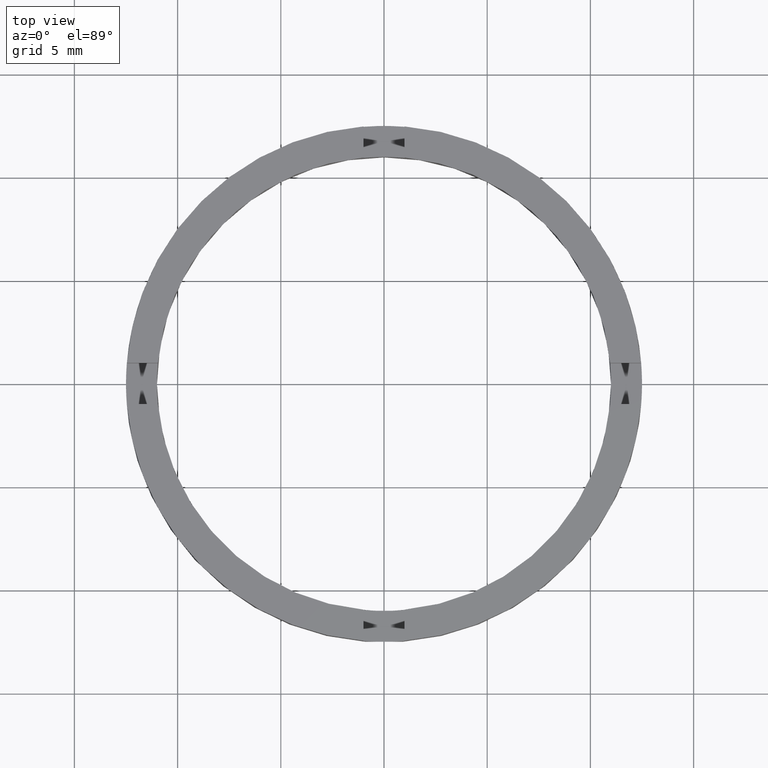
[diagram: clean part render]
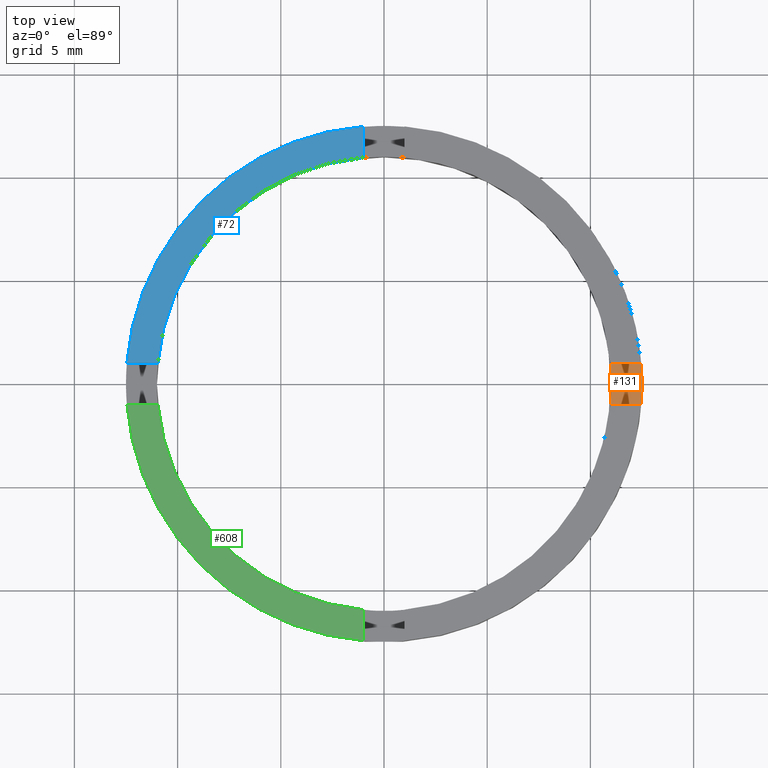
[diagram: same view with three faces highlighted in distinct colors, each labeled with its STEP entity id]
A machine part, top view with three faces highlighted in distinct colors.
Their STEP definitions:

[orange] entity #131 — the highlighted planar face has unit normal (0, 0, 1).
#21 = EDGE_CURVE ( 'NONE', #759, #750, #149, .T. ) ;
#23 = AXIS2_PLACEMENT_3D ( 'NONE', #730, #50, #550 ) ;
#24 = DIRECTION ( 'NONE',  ( 1.000000000000000000, 0.000000000000000000, 0.000000000000000000 ) ) ;
#30 = DIRECTION ( 'NONE',  ( 1.000000000000000000, 0.000000000000000000, 0.000000000000000000 ) ) ;
#31 = VECTOR ( 'NONE', #358, 1000.000000000000000 ) ;
#32 = LINE ( 'NONE', #299, #31 ) ;
#40 = CARTESIAN_POINT ( 'NONE',  ( 12.45993579437712739, 0.9999999999998402389, 1.500000000000000000 ) ) ;
#50 = DIRECTION ( 'NONE',  ( 0.000000000000000000, 0.000000000000000000, 1.000000000000000000 ) ) ;
#108 = ORIENTED_EDGE ( 'NONE', *, *, #21, .F. ) ;
#111 = VERTEX_POINT ( 'NONE', #40 ) ;
#113 = FACE_OUTER_BOUND ( 'NONE', #123, .T. ) ;
#123 = EDGE_LOOP ( 'NONE', ( #681, #432, #426, #108, #738, #232 ) ) ;
#126 = CARTESIAN_POINT ( 'NONE',  ( 0.000000000000000000, 0.000000000000000000, 1.500000000000000000 ) ) ;
#131 = ADVANCED_FACE ( 'NONE', ( #113 ), #611, .T. ) ;
#149 = CIRCLE ( 'NONE', #247, 11.00000000000000000 ) ;
#201 = CIRCLE ( 'NONE', #350, 11.00000000000000000 ) ;
#224 = CARTESIAN_POINT ( 'NONE',  ( 2.499999999999998668, -1.000000000000160316, 1.500000000000000000 ) ) ;
#232 = ORIENTED_EDGE ( 'NONE', *, *, #688, .T. ) ;
#235 = CARTESIAN_POINT ( 'NONE',  ( 10.95445115010333659, 0.9999999999998402389, 1.500000000000000000 ) ) ;
#247 = AXIS2_PLACEMENT_3D ( 'NONE', #126, #322, #24 ) ;
#254 = VERTEX_POINT ( 'NONE', #355 ) ;
#290 = DIRECTION ( 'NONE',  ( 0.000000000000000000, 0.000000000000000000, 1.000000000000000000 ) ) ;
#292 = DIRECTION ( 'NONE',  ( 1.000000000000000000, 0.000000000000000000, 0.000000000000000000 ) ) ;
#294 = LINE ( 'NONE', #224, #558 ) ;
#299 = CARTESIAN_POINT ( 'NONE',  ( 2.499999999999998668, 0.9999999999998397948, 1.500000000000000000 ) ) ;
#316 = AXIS2_PLACEMENT_3D ( 'NONE', #711, #780, #411 ) ;
#322 = DIRECTION ( 'NONE',  ( 0.000000000000000000, 0.000000000000000000, 1.000000000000000000 ) ) ;
#330 = DIRECTION ( 'NONE',  ( 1.000000000000000000, 4.336808689942018352E-17, 0.000000000000000000 ) ) ;
#334 = CARTESIAN_POINT ( 'NONE',  ( 12.50000000000000000, 1.530808498934191521E-15, 1.500000000000000000 ) ) ;
#348 = EDGE_CURVE ( 'NONE', #778, #759, #201, .T. ) ;
#350 = AXIS2_PLACEMENT_3D ( 'NONE', #613, #757, #292 ) ;
#355 = CARTESIAN_POINT ( 'NONE',  ( 12.45993579437710075, -1.000000000000159872, 1.500000000000000000 ) ) ;
#358 = DIRECTION ( 'NONE',  ( -1.000000000000000000, -4.336808689942018352E-17, -0.000000000000000000 ) ) ;
#411 = DIRECTION ( 'NONE',  ( 1.000000000000000000, 0.000000000000000000, -0.000000000000000000 ) ) ;
#426 = ORIENTED_EDGE ( 'NONE', *, *, #633, .T. ) ;
#432 = ORIENTED_EDGE ( 'NONE', *, *, #499, .T. ) ;
#499 = EDGE_CURVE ( 'NONE', #646, #111, #614, .T. ) ;
#550 = DIRECTION ( 'NONE',  ( 1.000000000000000000, 0.000000000000000000, 0.000000000000000000 ) ) ;
#557 = AXIS2_PLACEMENT_3D ( 'NONE', #769, #290, #30 ) ;
#558 = VECTOR ( 'NONE', #330, 1000.000000000000000 ) ;
#562 = CIRCLE ( 'NONE', #557, 12.50000000000000000 ) ;
#611 = PLANE ( 'NONE',  #316 ) ;
#613 = CARTESIAN_POINT ( 'NONE',  ( 0.000000000000000000, 0.000000000000000000, 1.500000000000000000 ) ) ;
#614 = CIRCLE ( 'NONE', #23, 12.50000000000000000 ) ;
#633 = EDGE_CURVE ( 'NONE', #111, #750, #32, .T. ) ;
#646 = VERTEX_POINT ( 'NONE', #334 ) ;
#649 = CARTESIAN_POINT ( 'NONE',  ( 11.00000000000000000, 1.347111479062088405E-15, 1.500000000000000000 ) ) ;
#681 = ORIENTED_EDGE ( 'NONE', *, *, #685, .T. ) ;
#685 = EDGE_CURVE ( 'NONE', #254, #646, #562, .T. ) ;
#688 = EDGE_CURVE ( 'NONE', #778, #254, #294, .T. ) ;
#711 = CARTESIAN_POINT ( 'NONE',  ( 0.000000000000000000, 0.000000000000000000, 1.500000000000000000 ) ) ;
#715 = CARTESIAN_POINT ( 'NONE',  ( 10.95445115010330639, -1.000000000000159872, 1.500000000000000000 ) ) ;
#730 = CARTESIAN_POINT ( 'NONE',  ( 0.000000000000000000, 0.000000000000000000, 1.500000000000000000 ) ) ;
#738 = ORIENTED_EDGE ( 'NONE', *, *, #348, .F. ) ;
#750 = VERTEX_POINT ( 'NONE', #235 ) ;
#757 = DIRECTION ( 'NONE',  ( 0.000000000000000000, 0.000000000000000000, 1.000000000000000000 ) ) ;
#759 = VERTEX_POINT ( 'NONE', #649 ) ;
#769 = CARTESIAN_POINT ( 'NONE',  ( 0.000000000000000000, 0.000000000000000000, 1.500000000000000000 ) ) ;
#778 = VERTEX_POINT ( 'NONE', #715 ) ;
#780 = DIRECTION ( 'NONE',  ( 0.000000000000000000, 0.000000000000000000, 1.000000000000000000 ) ) ;

[blue] entity #72 — the highlighted planar face has unit normal (0, 0, 1).
#34 = DIRECTION ( 'NONE',  ( 0.000000000000000000, 0.000000000000000000, 1.000000000000000000 ) ) ;
#72 = ADVANCED_FACE ( 'NONE', ( #146 ), #156, .T. ) ;
#73 = DIRECTION ( 'NONE',  ( -0.000000000000000000, -1.000000000000000000, -0.000000000000000000 ) ) ;
#83 = EDGE_CURVE ( 'NONE', #480, #98, #158, .T. ) ;
#98 = VERTEX_POINT ( 'NONE', #587 ) ;
#103 = EDGE_CURVE ( 'NONE', #98, #219, #648, .T. ) ;
#146 = FACE_OUTER_BOUND ( 'NONE', #241, .T. ) ;
#156 = PLANE ( 'NONE',  #476 ) ;
#158 = LINE ( 'NONE', #238, #689 ) ;
#188 = CARTESIAN_POINT ( 'NONE',  ( -12.45993579437711496, 0.9999999999999779066, 2.500000000000000000 ) ) ;
#198 = VECTOR ( 'NONE', #327, 1000.000000000000000 ) ;
#219 = VERTEX_POINT ( 'NONE', #610 ) ;
#230 = CARTESIAN_POINT ( 'NONE',  ( 0.000000000000000000, 0.000000000000000000, 2.500000000000000000 ) ) ;
#238 = CARTESIAN_POINT ( 'NONE',  ( -1.000000000000024425, 2.500000000000002220, 2.500000000000000000 ) ) ;
#241 = EDGE_LOOP ( 'NONE', ( #519, #487, #676, #484 ) ) ;
#284 = CARTESIAN_POINT ( 'NONE',  ( -2.500000000000186073, 0.9999999999999796829, 2.500000000000000000 ) ) ;
#296 = DIRECTION ( 'NONE',  ( 1.000000000000000000, 0.000000000000000000, 0.000000000000000000 ) ) ;
#327 = DIRECTION ( 'NONE',  ( -1.000000000000000000, -1.734723475976807341E-16, 0.000000000000000000 ) ) ;
#392 = EDGE_CURVE ( 'NONE', #219, #503, #464, .T. ) ;
#404 = AXIS2_PLACEMENT_3D ( 'NONE', #584, #699, #296 ) ;
#428 = CIRCLE ( 'NONE', #404, 12.50000000000000000 ) ;
#464 = LINE ( 'NONE', #284, #198 ) ;
#476 = AXIS2_PLACEMENT_3D ( 'NONE', #547, #34, #573 ) ;
#480 = VERTEX_POINT ( 'NONE', #548 ) ;
#482 = DIRECTION ( 'NONE',  ( 0.000000000000000000, 0.000000000000000000, 1.000000000000000000 ) ) ;
#484 = ORIENTED_EDGE ( 'NONE', *, *, #103, .F. ) ;
#487 = ORIENTED_EDGE ( 'NONE', *, *, #606, .T. ) ;
#503 = VERTEX_POINT ( 'NONE', #188 ) ;
#519 = ORIENTED_EDGE ( 'NONE', *, *, #83, .F. ) ;
#547 = CARTESIAN_POINT ( 'NONE',  ( 0.000000000000000000, 0.000000000000000000, 2.500000000000000000 ) ) ;
#548 = CARTESIAN_POINT ( 'NONE',  ( -1.000000000000024425, 12.45993579437711141, 2.500000000000000000 ) ) ;
#573 = DIRECTION ( 'NONE',  ( 1.000000000000000000, 0.000000000000000000, -0.000000000000000000 ) ) ;
#584 = CARTESIAN_POINT ( 'NONE',  ( 0.000000000000000000, 0.000000000000000000, 2.500000000000000000 ) ) ;
#587 = CARTESIAN_POINT ( 'NONE',  ( -1.000000000000024425, 10.95445115010331882, 2.500000000000000000 ) ) ;
#606 = EDGE_CURVE ( 'NONE', #480, #503, #428, .T. ) ;
#609 = AXIS2_PLACEMENT_3D ( 'NONE', #230, #482, #615 ) ;
#610 = CARTESIAN_POINT ( 'NONE',  ( -10.95445115010332415, 0.9999999999999781286, 2.500000000000000000 ) ) ;
#615 = DIRECTION ( 'NONE',  ( 1.000000000000000000, 0.000000000000000000, 0.000000000000000000 ) ) ;
#648 = CIRCLE ( 'NONE', #609, 11.00000000000000000 ) ;
#676 = ORIENTED_EDGE ( 'NONE', *, *, #392, .F. ) ;
#689 = VECTOR ( 'NONE', #73, 1000.000000000000000 ) ;
#699 = DIRECTION ( 'NONE',  ( 0.000000000000000000, 0.000000000000000000, 1.000000000000000000 ) ) ;

[green] entity #608 — the highlighted planar face has unit normal (0, 0, 1).
#4 = CARTESIAN_POINT ( 'NONE',  ( 0.000000000000000000, 0.000000000000000000, 2.500000000000000000 ) ) ;
#16 = CARTESIAN_POINT ( 'NONE',  ( -2.500000000000186073, -1.000000000000020428, 2.500000000000000000 ) ) ;
#19 = EDGE_CURVE ( 'NONE', #520, #740, #130, .T. ) ;
#42 = AXIS2_PLACEMENT_3D ( 'NONE', #4, #592, #424 ) ;
#53 = DIRECTION ( 'NONE',  ( 0.000000000000000000, 0.000000000000000000, 1.000000000000000000 ) ) ;
#62 = AXIS2_PLACEMENT_3D ( 'NONE', #179, #579, #402 ) ;
#63 = DIRECTION ( 'NONE',  ( 1.000000000000000000, 0.000000000000000000, 0.000000000000000000 ) ) ;
#66 = CARTESIAN_POINT ( 'NONE',  ( -10.95445115010331882, -1.000000000000021982, 2.500000000000000000 ) ) ;
#130 = CIRCLE ( 'NONE', #560, 12.50000000000000000 ) ;
#167 = VECTOR ( 'NONE', #765, 1000.000000000000000 ) ;
#168 = CARTESIAN_POINT ( 'NONE',  ( -1.000000000000163647, -10.95445115010330639, 2.500000000000000000 ) ) ;
#175 = LINE ( 'NONE', #695, #167 ) ;
#179 = CARTESIAN_POINT ( 'NONE',  ( 0.000000000000000000, 0.000000000000000000, 2.500000000000000000 ) ) ;
#191 = VECTOR ( 'NONE', #446, 1000.000000000000000 ) ;
#245 = PLANE ( 'NONE',  #62 ) ;
#258 = EDGE_CURVE ( 'NONE', #746, #740, #175, .T. ) ;
#261 = CARTESIAN_POINT ( 'NONE',  ( -1.000000000000163647, -12.45993579437710075, 2.500000000000000000 ) ) ;
#311 = EDGE_CURVE ( 'NONE', #520, #673, #720, .T. ) ;
#385 = EDGE_LOOP ( 'NONE', ( #495, #763, #760, #531 ) ) ;
#402 = DIRECTION ( 'NONE',  ( 1.000000000000000000, 0.000000000000000000, -0.000000000000000000 ) ) ;
#409 = CIRCLE ( 'NONE', #42, 11.00000000000000000 ) ;
#424 = DIRECTION ( 'NONE',  ( 1.000000000000000000, 0.000000000000000000, 0.000000000000000000 ) ) ;
#446 = DIRECTION ( 'NONE',  ( 1.000000000000000000, 1.734723475976807341E-16, -0.000000000000000000 ) ) ;
#465 = EDGE_CURVE ( 'NONE', #673, #746, #409, .T. ) ;
#495 = ORIENTED_EDGE ( 'NONE', *, *, #258, .F. ) ;
#520 = VERTEX_POINT ( 'NONE', #625 ) ;
#531 = ORIENTED_EDGE ( 'NONE', *, *, #19, .T. ) ;
#560 = AXIS2_PLACEMENT_3D ( 'NONE', #659, #53, #63 ) ;
#579 = DIRECTION ( 'NONE',  ( 0.000000000000000000, 0.000000000000000000, 1.000000000000000000 ) ) ;
#592 = DIRECTION ( 'NONE',  ( 0.000000000000000000, 0.000000000000000000, 1.000000000000000000 ) ) ;
#608 = ADVANCED_FACE ( 'NONE', ( #680 ), #245, .T. ) ;
#625 = CARTESIAN_POINT ( 'NONE',  ( -12.45993579437711141, -1.000000000000022204, 2.500000000000000000 ) ) ;
#659 = CARTESIAN_POINT ( 'NONE',  ( 0.000000000000000000, 0.000000000000000000, 2.500000000000000000 ) ) ;
#673 = VERTEX_POINT ( 'NONE', #66 ) ;
#680 = FACE_OUTER_BOUND ( 'NONE', #385, .T. ) ;
#695 = CARTESIAN_POINT ( 'NONE',  ( -1.000000000000164757, -2.500000000000182521, 2.500000000000000000 ) ) ;
#720 = LINE ( 'NONE', #16, #191 ) ;
#740 = VERTEX_POINT ( 'NONE', #261 ) ;
#746 = VERTEX_POINT ( 'NONE', #168 ) ;
#760 = ORIENTED_EDGE ( 'NONE', *, *, #311, .F. ) ;
#763 = ORIENTED_EDGE ( 'NONE', *, *, #465, .F. ) ;
#765 = DIRECTION ( 'NONE',  ( 1.301042606982605567E-16, -1.000000000000000000, 0.000000000000000000 ) ) ;